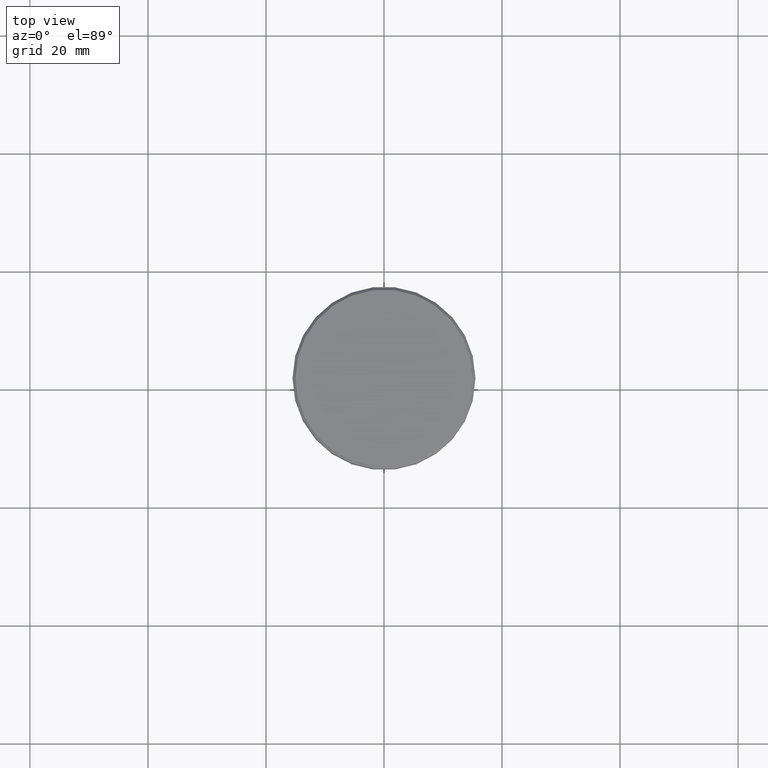
[diagram: clean part render]
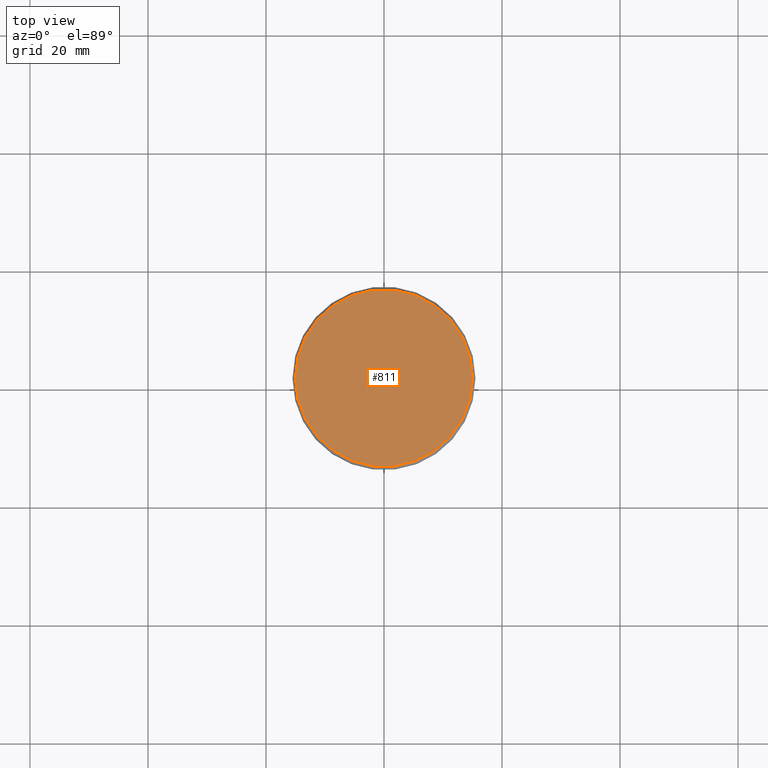
[diagram: same view with one face highlighted and labeled with its STEP entity id]
A machine part, top view. The second image highlights one B-rep face of the part: STEP entity #811.
In plain terms, the highlighted planar face has unit normal (0, -0, 1).
Its self-contained STEP definition (entity closure, byte-faithful):
#23 = CARTESIAN_POINT ( 'NONE',  ( 0.000000000000000000, 0.000000000000000000, 0.000000000000000000 ) ) ;
#38 = DIRECTION ( 'NONE',  ( 0.000000000000000000, -0.000000000000000000, 1.000000000000000000 ) ) ;
#128 = PLANE ( 'NONE',  #1026 ) ;
#239 = EDGE_LOOP ( 'NONE', ( #1019, #476 ) ) ;
#296 = EDGE_CURVE ( 'NONE', #651, #1149, #397, .T. ) ;
#324 = EDGE_CURVE ( 'NONE', #1149, #651, #557, .T. ) ;
#388 = CARTESIAN_POINT ( 'NONE',  ( 15.00000000000002665, 1.867586368699715348E-15, 0.000000000000000000 ) ) ;
#394 = DIRECTION ( 'NONE',  ( 1.000000000000000000, 0.000000000000000000, 0.000000000000000000 ) ) ;
#397 = CIRCLE ( 'NONE', #1083, 15.00000000000002665 ) ;
#406 = DIRECTION ( 'NONE',  ( 1.000000000000000000, 0.000000000000000000, 0.000000000000000000 ) ) ;
#476 = ORIENTED_EDGE ( 'NONE', *, *, #324, .T. ) ;
#493 = DIRECTION ( 'NONE',  ( -0.000000000000000000, -0.000000000000000000, 1.000000000000000000 ) ) ;
#497 = CARTESIAN_POINT ( 'NONE',  ( 0.000000000000000000, 0.000000000000000000, 0.000000000000000000 ) ) ;
#557 = CIRCLE ( 'NONE', #686, 15.00000000000002665 ) ;
#651 = VERTEX_POINT ( 'NONE', #908 ) ;
#686 = AXIS2_PLACEMENT_3D ( 'NONE', #23, #493, #394 ) ;
#776 = CARTESIAN_POINT ( 'NONE',  ( 0.000000000000000000, 0.000000000000000000, 0.000000000000000000 ) ) ;
#811 = ADVANCED_FACE ( 'NONE', ( #846 ), #128, .T. ) ;
#846 = FACE_OUTER_BOUND ( 'NONE', #239, .T. ) ;
#908 = CARTESIAN_POINT ( 'NONE',  ( -15.00000000000002665, 0.000000000000000000, 0.000000000000000000 ) ) ;
#1019 = ORIENTED_EDGE ( 'NONE', *, *, #296, .T. ) ;
#1026 = AXIS2_PLACEMENT_3D ( 'NONE', #497, #38, #406 ) ;
#1083 = AXIS2_PLACEMENT_3D ( 'NONE', #776, #1132, #1110 ) ;
#1110 = DIRECTION ( 'NONE',  ( 1.000000000000000000, 0.000000000000000000, 0.000000000000000000 ) ) ;
#1132 = DIRECTION ( 'NONE',  ( -0.000000000000000000, -0.000000000000000000, 1.000000000000000000 ) ) ;
#1149 = VERTEX_POINT ( 'NONE', #388 ) ;